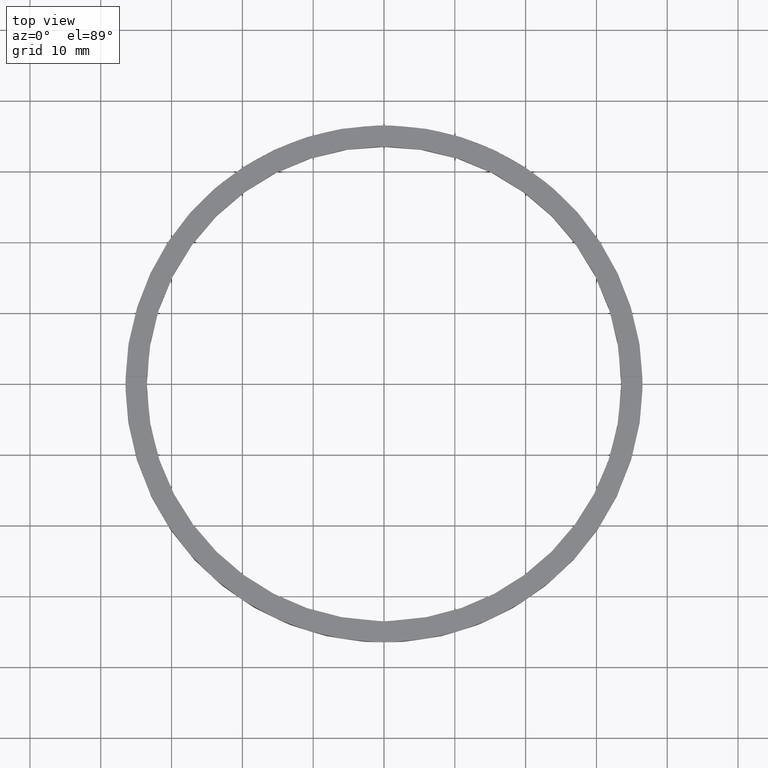
[diagram: clean part render]
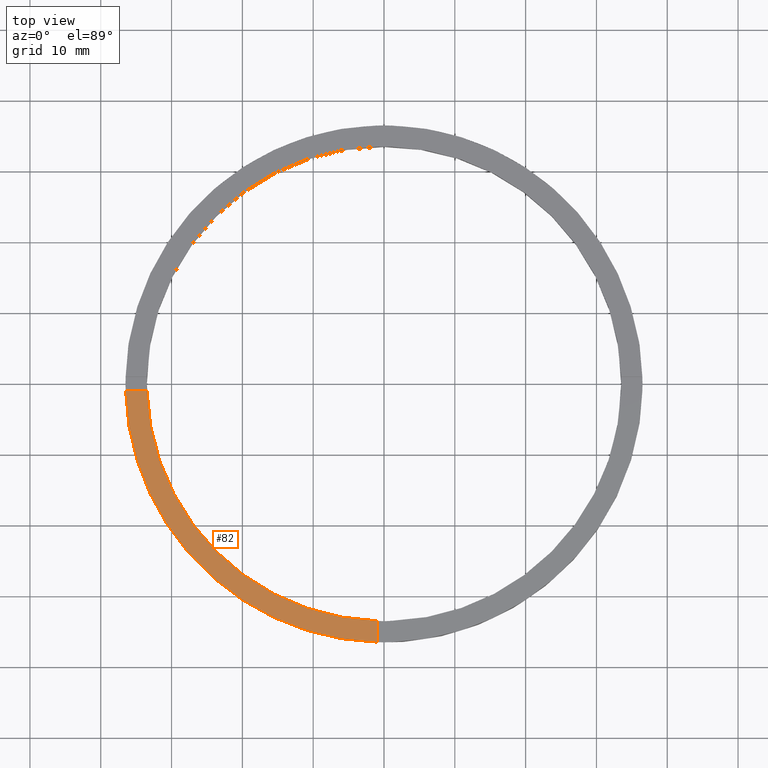
[diagram: same view with one face highlighted and labeled with its STEP entity id]
A machine part, top view. The second image highlights one B-rep face of the part: STEP entity #82.
In plain terms, the highlighted planar face has unit normal (0, 0, 1).
Its self-contained STEP definition (entity closure, byte-faithful):
#23 = LINE ( 'NONE', #69, #37 ) ;
#35 = DIRECTION ( 'NONE',  ( 1.000000000000000000, 1.951563910473907735E-16, -0.000000000000000000 ) ) ;
#37 = VECTOR ( 'NONE', #199, 1000.000000000000000 ) ;
#59 = CARTESIAN_POINT ( 'NONE',  ( 0.000000000000000000, 0.000000000000000000, 3.500000000000000000 ) ) ;
#69 = CARTESIAN_POINT ( 'NONE',  ( -1.000000000000161426, -26.50000000000017764, 3.500000000000000000 ) ) ;
#82 = ADVANCED_FACE ( 'NONE', ( #366 ), #726, .T. ) ;
#89 = LINE ( 'NONE', #727, #606 ) ;
#90 = VERTEX_POINT ( 'NONE', #754 ) ;
#150 = AXIS2_PLACEMENT_3D ( 'NONE', #59, #737, #693 ) ;
#173 = CARTESIAN_POINT ( 'NONE',  ( -1.000000000000160538, -33.48507130050644065, 3.500000000000000000 ) ) ;
#199 = DIRECTION ( 'NONE',  ( 1.301042606982605074E-16, -1.000000000000000000, 0.000000000000000000 ) ) ;
#232 = CARTESIAN_POINT ( 'NONE',  ( 0.000000000000000000, 0.000000000000000000, 3.500000000000000000 ) ) ;
#273 = DIRECTION ( 'NONE',  ( 0.000000000000000000, 0.000000000000000000, 1.000000000000000000 ) ) ;
#296 = VERTEX_POINT ( 'NONE', #742 ) ;
#304 = VERTEX_POINT ( 'NONE', #386 ) ;
#315 = EDGE_CURVE ( 'NONE', #692, #304, #23, .T. ) ;
#334 = AXIS2_PLACEMENT_3D ( 'NONE', #232, #471, #724 ) ;
#343 = ORIENTED_EDGE ( 'NONE', *, *, #706, .F. ) ;
#366 = FACE_OUTER_BOUND ( 'NONE', #684, .T. ) ;
#371 = EDGE_CURVE ( 'NONE', #90, #304, #549, .T. ) ;
#372 = DIRECTION ( 'NONE',  ( 1.000000000000000000, 0.000000000000000000, 0.000000000000000000 ) ) ;
#373 = CIRCLE ( 'NONE', #526, 33.50000000000000000 ) ;
#386 = CARTESIAN_POINT ( 'NONE',  ( -1.000000000000160094, -36.48629879831604939, 3.500000000000000000 ) ) ;
#420 = ORIENTED_EDGE ( 'NONE', *, *, #730, .F. ) ;
#471 = DIRECTION ( 'NONE',  ( 0.000000000000000000, 0.000000000000000000, 1.000000000000000000 ) ) ;
#524 = CARTESIAN_POINT ( 'NONE',  ( 0.000000000000000000, 0.000000000000000000, 3.500000000000000000 ) ) ;
#526 = AXIS2_PLACEMENT_3D ( 'NONE', #524, #273, #372 ) ;
#549 = CIRCLE ( 'NONE', #150, 36.50000000000000000 ) ;
#583 = ORIENTED_EDGE ( 'NONE', *, *, #315, .F. ) ;
#606 = VECTOR ( 'NONE', #35, 1000.000000000000000 ) ;
#684 = EDGE_LOOP ( 'NONE', ( #583, #420, #343, #763 ) ) ;
#692 = VERTEX_POINT ( 'NONE', #173 ) ;
#693 = DIRECTION ( 'NONE',  ( 1.000000000000000000, 0.000000000000000000, 0.000000000000000000 ) ) ;
#706 = EDGE_CURVE ( 'NONE', #90, #296, #89, .T. ) ;
#724 = DIRECTION ( 'NONE',  ( 1.000000000000000000, 0.000000000000000000, -0.000000000000000000 ) ) ;
#726 = PLANE ( 'NONE',  #334 ) ;
#727 = CARTESIAN_POINT ( 'NONE',  ( -26.50000000000018474, -1.000000000000025313, 3.500000000000000000 ) ) ;
#730 = EDGE_CURVE ( 'NONE', #296, #692, #373, .T. ) ;
#737 = DIRECTION ( 'NONE',  ( 0.000000000000000000, 0.000000000000000000, 1.000000000000000000 ) ) ;
#742 = CARTESIAN_POINT ( 'NONE',  ( -33.48507130050644065, -1.000000000000026645, 3.500000000000000000 ) ) ;
#754 = CARTESIAN_POINT ( 'NONE',  ( -36.48629879831605649, -1.000000000000027311, 3.500000000000000000 ) ) ;
#763 = ORIENTED_EDGE ( 'NONE', *, *, #371, .T. ) ;